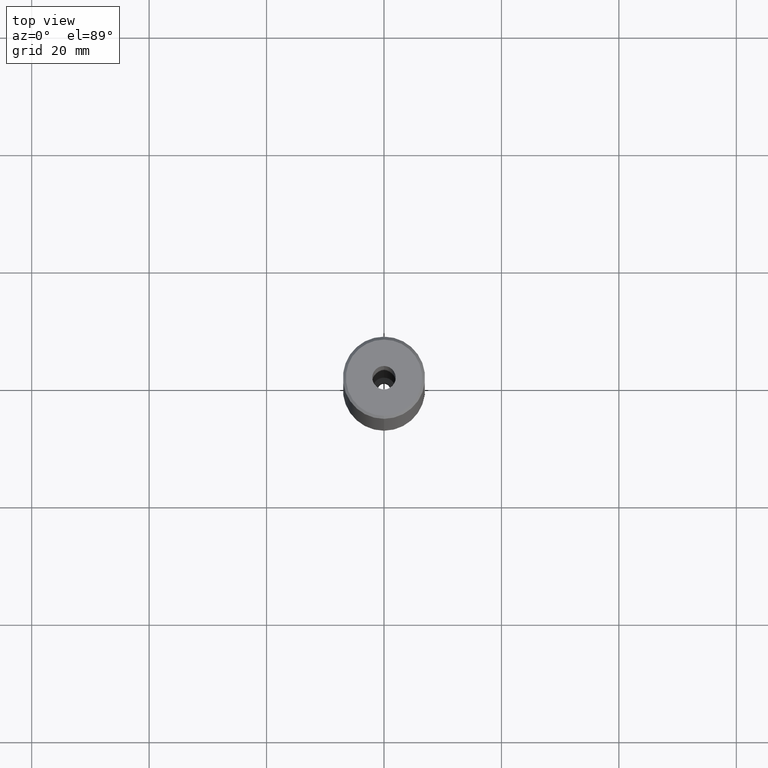
[diagram: clean part render]
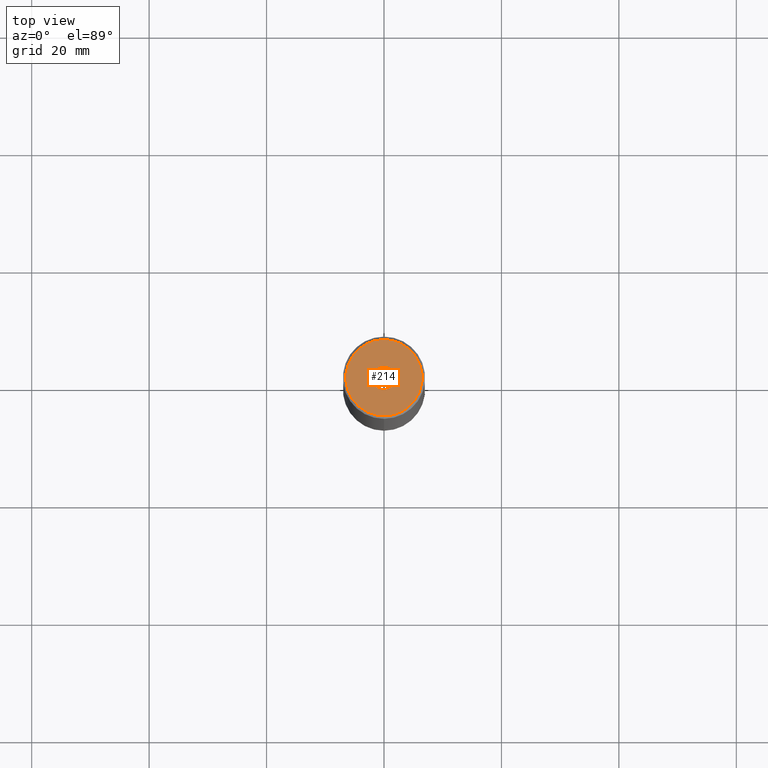
[diagram: same view with one face highlighted and labeled with its STEP entity id]
A machine part, top view. The second image highlights one B-rep face of the part: STEP entity #214.
In plain terms, the highlighted planar face has unit normal (0, 0, -1).
Its self-contained STEP definition (entity closure, byte-faithful):
#114=VERTEX_POINT('NONE',#290);
#160=EDGE_CURVE('NONE',#114,#228,#343,.T.);
#168=EDGE_CURVE('NONE',#246,#252,#353,.T.);
#182=EDGE_CURVE('NONE',#228,#114,#368,.T.);
#196=EDGE_CURVE('NONE',#252,#246,#383,.T.);
#214=ADVANCED_FACE('NONE',(#405,#406),#407,.F.);
#228=VERTEX_POINT('NONE',#421);
#246=VERTEX_POINT('NONE',#441);
#252=VERTEX_POINT('NONE',#448);
#290=CARTESIAN_POINT('',(-2.44921270764475E-016,-2.0,117.0));
#343=CIRCLE('',#554,2.0);
#353=CIRCLE('',#565,6.49999999999999);
#368=CIRCLE('',#583,2.0);
#383=CIRCLE('',#604,6.49999999999999);
#405=FACE_OUTER_BOUND('',#632,.T.);
#406=FACE_BOUND('',#633,.T.);
#407=PLANE('',#634);
#421=CARTESIAN_POINT('',(0.0,2.0,117.0));
#441=CARTESIAN_POINT('',(0.0,-6.49999999999999,117.0));
#448=CARTESIAN_POINT('',(-8.26609288830104E-016,6.49999999999999,117.0));
#554=AXIS2_PLACEMENT_3D('',#787,#788,#789);
#565=AXIS2_PLACEMENT_3D('',#798,#799,#800);
#583=AXIS2_PLACEMENT_3D('',#814,#815,#816);
#604=AXIS2_PLACEMENT_3D('',#830,#831,#832);
#632=EDGE_LOOP('',(#874,#875));
#633=EDGE_LOOP('',(#876,#877));
#634=AXIS2_PLACEMENT_3D('',#878,#879,#880);
#787=CARTESIAN_POINT('',(0.0,0.0,117.0));
#788=DIRECTION('',(0.0,-0.0,1.0));
#789=DIRECTION('',(0.0,1.0,0.0));
#798=CARTESIAN_POINT('',(0.0,0.0,117.0));
#799=DIRECTION('',(-0.0,0.0,1.0));
#800=DIRECTION('',(0.0,-1.0,0.0));
#814=CARTESIAN_POINT('',(0.0,0.0,117.0));
#815=DIRECTION('',(0.0,-0.0,1.0));
#816=DIRECTION('',(0.0,1.0,0.0));
#830=CARTESIAN_POINT('',(0.0,0.0,117.0));
#831=DIRECTION('',(-0.0,0.0,1.0));
#832=DIRECTION('',(0.0,-1.0,0.0));
#874=ORIENTED_EDGE('',*,*,#168,.T.);
#875=ORIENTED_EDGE('',*,*,#196,.T.);
#876=ORIENTED_EDGE('',*,*,#182,.F.);
#877=ORIENTED_EDGE('',*,*,#160,.F.);
#878=CARTESIAN_POINT('',(-6.99999999999999,0.0,117.0));
#879=DIRECTION('',(0.0,0.0,-1.0));
#880=DIRECTION('',(-1.0,0.0,0.0));